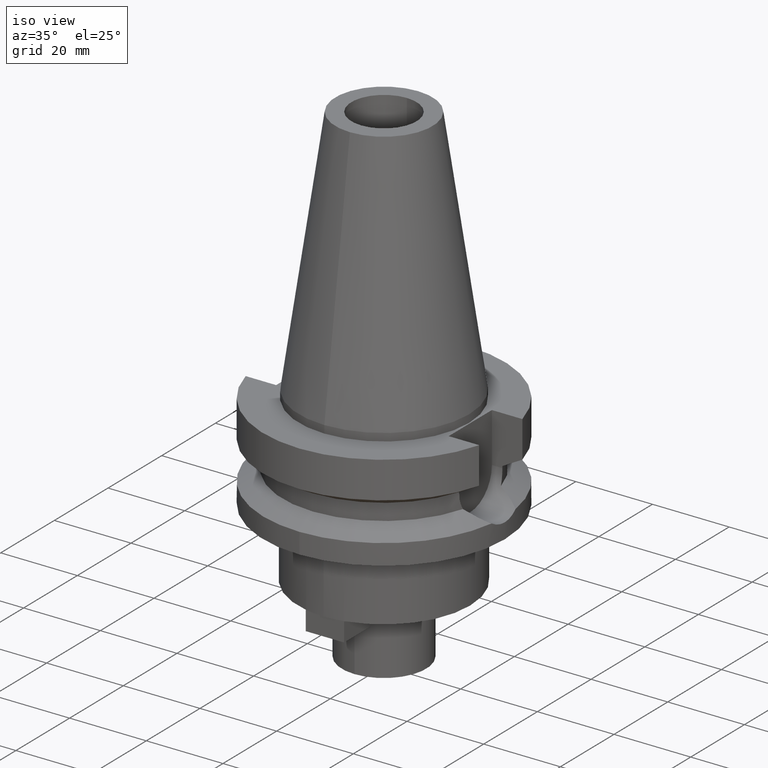
[diagram: clean part render]
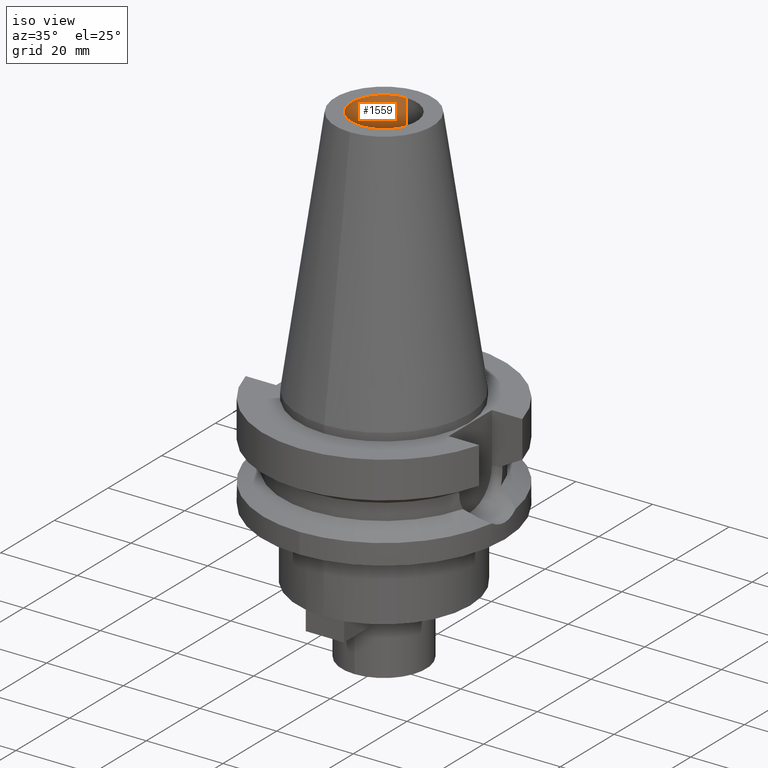
[diagram: same view with one face highlighted and labeled with its STEP entity id]
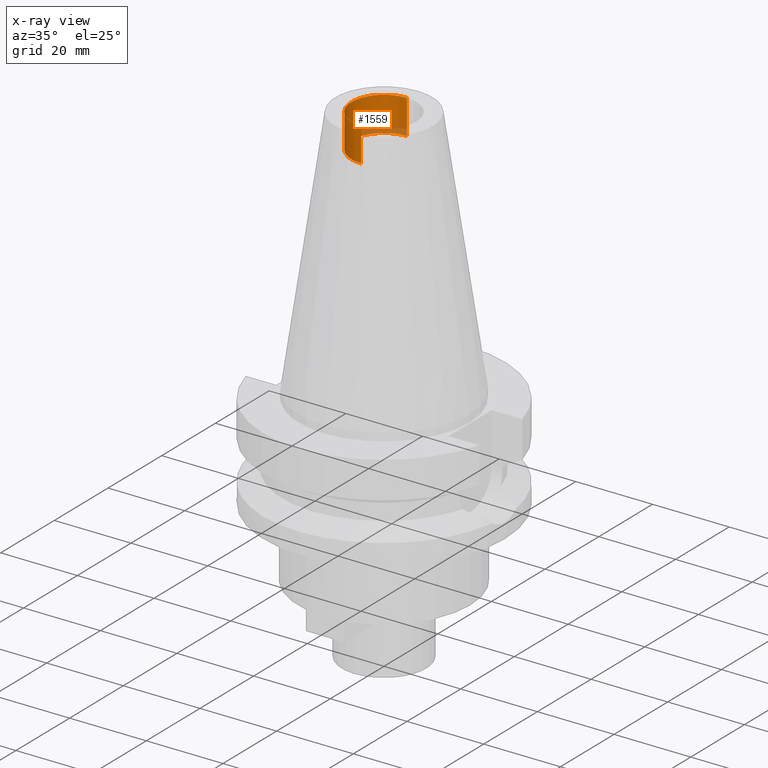
[diagram: x-ray of the same camera — body ghosted, the highlighted face saturated]
A machine part, iso view. The second image highlights one B-rep face of the part: STEP entity #1559.
The next image is the same camera in x-ray: the body ghosted, the highlighted face saturated — about 10% of this face is hidden behind the body in this view.
In plain terms, the highlighted cylindrical surface (partial cylindrical patch) has radius 8.5 mm, axis along (0, 0, -1).
Its self-contained STEP definition (entity closure, byte-faithful):
#72=CARTESIAN_POINT('',(0.E0,2.104188130295E-14,6.54E1));
#73=DIRECTION('',(0.E0,0.E0,1.E0));
#74=DIRECTION('',(0.E0,1.E0,0.E0));
#75=AXIS2_PLACEMENT_3D('',#72,#73,#74);
#80=DIRECTION('',(0.E0,0.E0,1.E0));
#81=VECTOR('',#80,9.E0);
#82=CARTESIAN_POINT('',(0.E0,8.5E0,5.64E1));
#83=LINE('',#82,#81);
#87=DIRECTION('',(0.E0,0.E0,1.E0));
#88=VECTOR('',#87,9.E0);
#89=CARTESIAN_POINT('',(0.E0,-8.5E0,5.64E1));
#90=LINE('',#89,#88);
#94=CARTESIAN_POINT('',(0.E0,2.104188130295E-14,5.64E1));
#95=DIRECTION('',(0.E0,0.E0,-1.E0));
#96=DIRECTION('',(0.E0,-1.E0,0.E0));
#97=AXIS2_PLACEMENT_3D('',#94,#95,#96);
#1293=CARTESIAN_POINT('',(0.E0,-8.5E0,6.54E1));
#1294=CARTESIAN_POINT('',(0.E0,8.5E0,6.54E1));
#1295=VERTEX_POINT('',#1293);
#1296=VERTEX_POINT('',#1294);
#1297=CARTESIAN_POINT('',(0.E0,8.5E0,5.64E1));
#1298=VERTEX_POINT('',#1297);
#1299=CARTESIAN_POINT('',(0.E0,-8.5E0,5.64E1));
#1300=VERTEX_POINT('',#1299);
#1547=CARTESIAN_POINT('',(0.E0,2.104188130295E-14,7.182E1));
#1548=DIRECTION('',(0.E0,0.E0,-1.E0));
#1549=DIRECTION('',(0.E0,-1.E0,0.E0));
#1550=AXIS2_PLACEMENT_3D('',#1547,#1548,#1549);
#1551=CYLINDRICAL_SURFACE('',#1550,8.5E0);
#1552=ORIENTED_EDGE('',*,*,#1537,.F.);
#1554=ORIENTED_EDGE('',*,*,#1553,.F.);
#1555=ORIENTED_EDGE('',*,*,#1540,.T.);
#1556=ORIENTED_EDGE('',*,*,#1527,.F.);
#1557=EDGE_LOOP('',(#1552,#1554,#1555,#1556));
#1558=FACE_OUTER_BOUND('',#1557,.F.);
#76=CIRCLE('',#75,8.5E0);
#98=CIRCLE('',#97,8.5E0);
#1527=EDGE_CURVE('',#1296,#1295,#76,.T.);
#1537=EDGE_CURVE('',#1298,#1296,#83,.T.);
#1540=EDGE_CURVE('',#1300,#1295,#90,.T.);
#1553=EDGE_CURVE('',#1300,#1298,#98,.T.);
#1559=ADVANCED_FACE('',(#1558),#1551,.F.);